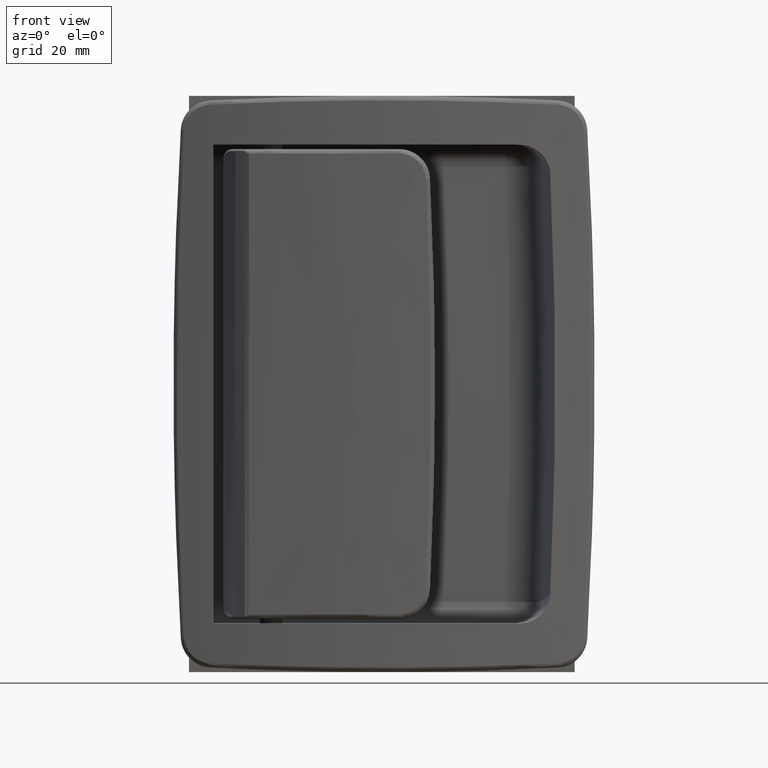
[diagram: clean part render]
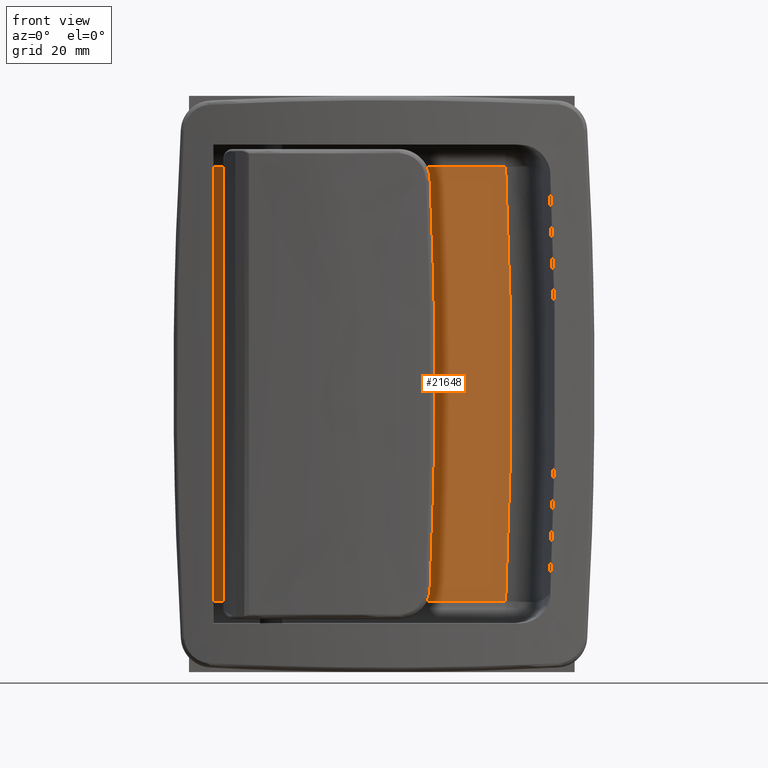
[diagram: same view with one face highlighted and labeled with its STEP entity id]
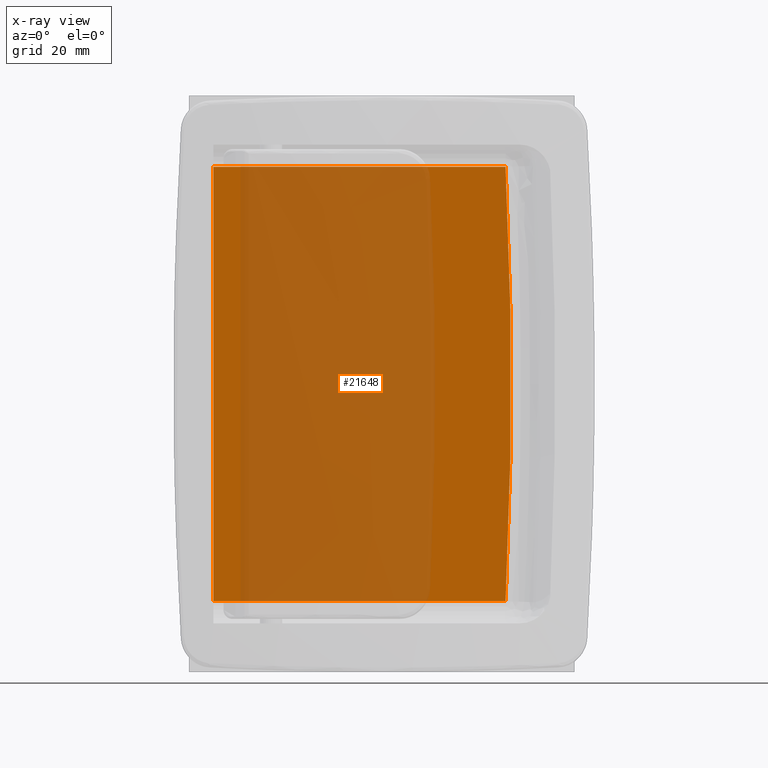
[diagram: x-ray of the same camera — body ghosted, the highlighted face saturated]
A machine part, front view. The second image highlights one B-rep face of the part: STEP entity #21648.
The next image is the same camera in x-ray: the body ghosted, the highlighted face saturated — about 65% of this face is hidden behind the body in this view.
In plain terms, the highlighted face is a freeform B-spline surface patch.
Its self-contained STEP definition (entity closure, byte-faithful):
#20933=CARTESIAN_POINT('',(74.937396195206702,10.799999999967840,-49.0));
#20934=VERTEX_POINT('',#20933);
#20990=CARTESIAN_POINT('',(23.446547614184549,10.799999999967820,-49.0));
#20991=VERTEX_POINT('',#20990);
#21011=CARTESIAN_POINT('',(23.446547614184549,10.799999999967820,-49.0));
#21012=CARTESIAN_POINT('',(74.937396195206702,10.799999999967840,-49.0));
#21013=QUASI_UNIFORM_CURVE('',1,(#21011,#21012),.UNSPECIFIED.,.F.,.U.);
#21014=EDGE_CURVE('',#20991,#20934,#21013,.T.);
#21077=CARTESIAN_POINT('',(20.553452385792951,10.799999999967840,-49.0));
#21078=VERTEX_POINT('',#21077);
#21093=CARTESIAN_POINT('',(20.553452385792951,10.799999999967840,-49.0));
#21094=CARTESIAN_POINT('',(21.517639434107050,10.799999999967840,-49.022629111704639));
#21095=CARTESIAN_POINT('',(22.482361306473429,10.799999999967859,-49.022629132695897));
#21096=CARTESIAN_POINT('',(23.446547614184549,10.799999999967820,-49.0));
#21097=B_SPLINE_CURVE_WITH_KNOTS('',3,(#21093,#21094,#21095,#21096),.UNSPECIFIED.,.F.,.U.,(4,4),(5.350254E-011,2.893364868318621),.UNSPECIFIED.);
#21098=EDGE_CURVE('',#21078,#20991,#21097,.T.);
#21119=CARTESIAN_POINT('',(8.999999999988742,10.799999999967840,-49.0));
#21120=VERTEX_POINT('',#21119);
#21140=CARTESIAN_POINT('',(8.999999999988742,10.799999999967840,-49.0));
#21141=CARTESIAN_POINT('',(20.553452385792951,10.799999999967840,-49.0));
#21142=QUASI_UNIFORM_CURVE('',1,(#21140,#21141),.UNSPECIFIED.,.F.,.U.);
#21143=EDGE_CURVE('',#21120,#21078,#21142,.T.);
#21337=CARTESIAN_POINT('',(74.937385148538198,10.799999999967840,49.000220918255401));
#21338=VERTEX_POINT('',#21337);
#21392=CARTESIAN_POINT('',(23.446547614184500,10.799999999967840,49.0));
#21393=VERTEX_POINT('',#21392);
#21407=CARTESIAN_POINT('',(74.937385148538198,10.799999999967840,49.000220918255401));
#21408=CARTESIAN_POINT('',(23.446547614184500,10.799999999967840,49.0));
#21409=QUASI_UNIFORM_CURVE('',1,(#21407,#21408),.UNSPECIFIED.,.F.,.U.);
#21410=EDGE_CURVE('',#21338,#21393,#21409,.T.);
#21479=CARTESIAN_POINT('',(20.553452385792951,10.799999999967840,49.0));
#21480=VERTEX_POINT('',#21479);
#21494=CARTESIAN_POINT('',(23.446547614184500,10.799999999967840,49.0));
#21495=CARTESIAN_POINT('',(22.482361161099629,10.799999999967810,49.022628893159578));
#21496=CARTESIAN_POINT('',(21.517638460436832,10.799999999967881,49.022629194438622));
#21497=CARTESIAN_POINT('',(20.553452385792951,10.799999999967840,49.0));
#21498=B_SPLINE_CURVE_WITH_KNOTS('',3,(#21494,#21495,#21496,#21497),.UNSPECIFIED.,.F.,.U.,(4,4),(5.363221E-011,2.893364868318507),.UNSPECIFIED.);
#21499=EDGE_CURVE('',#21393,#21480,#21498,.T.);
#21520=CARTESIAN_POINT('',(8.999999999988742,10.799999999967840,49.0));
#21521=VERTEX_POINT('',#21520);
#21538=CARTESIAN_POINT('',(20.553452385792951,10.799999999967840,49.0));
#21539=CARTESIAN_POINT('',(8.999999999988742,10.799999999967840,49.0));
#21540=QUASI_UNIFORM_CURVE('',1,(#21538,#21539),.UNSPECIFIED.,.F.,.U.);
#21541=EDGE_CURVE('',#21480,#21521,#21540,.T.);
#21569=CARTESIAN_POINT('',(74.937385148538198,10.799999999967840,49.000220918255401));
#21570=CARTESIAN_POINT('',(77.387558244344063,10.799999999967838,0.000110735312066));
#21571=CARTESIAN_POINT('',(74.937396195206702,10.799999999967840,-49.0));
#21579=(BOUNDED_CURVE()B_SPLINE_CURVE(2,(#21569,#21570,#21571),.UNSPECIFIED.,.F.,.U.)CURVE()GEOMETRIC_REPRESENTATION_ITEM()QUASI_UNIFORM_CURVE()RATIONAL_B_SPLINE_CURVE((1.0,0.998752174134329,1.0))REPRESENTATION_ITEM(''));
#21580=EDGE_CURVE('',#21338,#20934,#21579,.T.);
#21629=CARTESIAN_POINT('',(5.645272733877000,10.799999999967840,53.913767111905919));
#21630=CARTESIAN_POINT('',(79.516438702836552,10.799999999967840,53.913767111905919));
#21631=CARTESIAN_POINT('',(5.645272733877000,10.799999999967840,-53.913769741383220));
#21632=CARTESIAN_POINT('',(79.516438702836552,10.799999999967840,-53.913769741383220));
#21633=B_SPLINE_SURFACE_WITH_KNOTS('',1,1,((#21629,#21631),(#21630,#21632)),.UNSPECIFIED.,.F.,.F.,.U.,(2,2),(2,2),(0.0,73.871165968959559),(0.0,107.827536853289100),.UNSPECIFIED.);
#21634=CARTESIAN_POINT('',(8.999999999988742,10.799999999967840,49.0));
#21635=CARTESIAN_POINT('',(8.999999999988742,10.799999999967840,-49.0));
#21636=QUASI_UNIFORM_CURVE('',1,(#21634,#21635),.UNSPECIFIED.,.F.,.U.);
#21637=EDGE_CURVE('',#21521,#21120,#21636,.T.);
#21638=ORIENTED_EDGE('',*,*,#21637,.T.);
#21639=ORIENTED_EDGE('',*,*,#21143,.T.);
#21640=ORIENTED_EDGE('',*,*,#21098,.T.);
#21641=ORIENTED_EDGE('',*,*,#21014,.T.);
#21642=ORIENTED_EDGE('',*,*,#21580,.F.);
#21643=ORIENTED_EDGE('',*,*,#21410,.T.);
#21644=ORIENTED_EDGE('',*,*,#21499,.T.);
#21645=ORIENTED_EDGE('',*,*,#21541,.T.);
#21646=EDGE_LOOP('',(#21638,#21639,#21640,#21641,#21642,#21643,#21644,#21645));
#21647=FACE_OUTER_BOUND('',#21646,.T.);
#21648=ADVANCED_FACE('',(#21647),#21633,.F.);